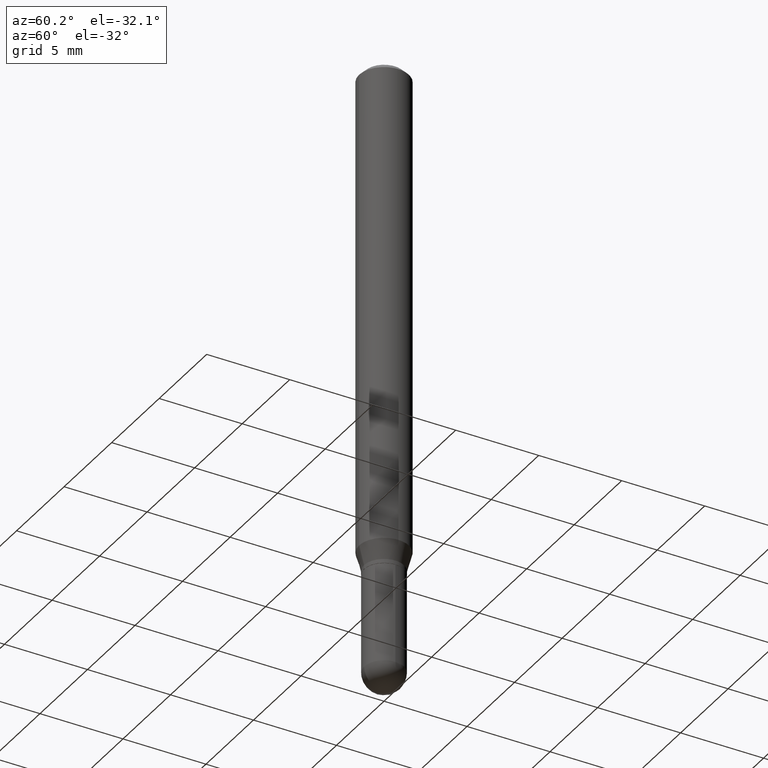
[diagram: clean part render]
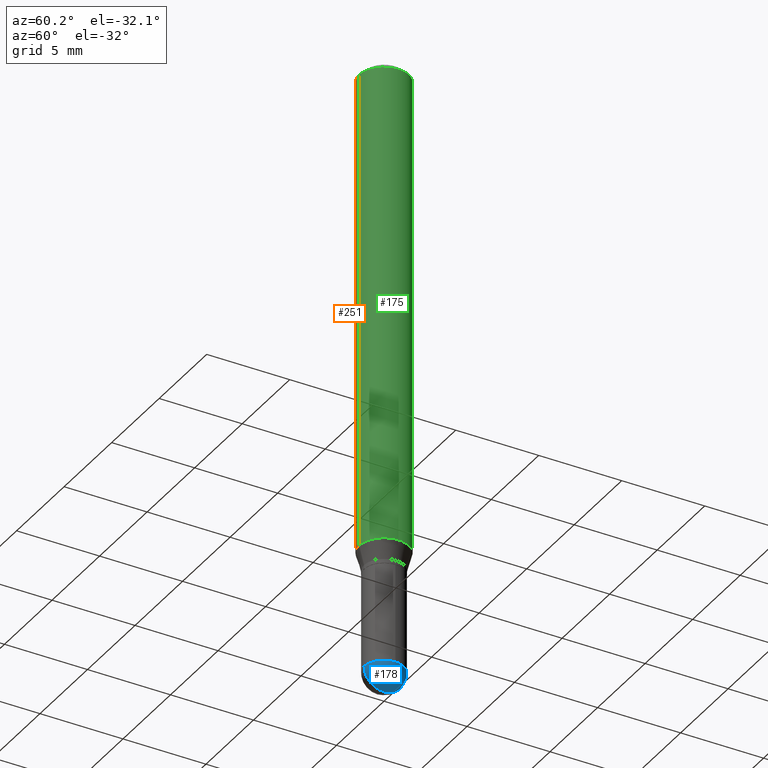
[diagram: same view with three faces highlighted in distinct colors, each labeled with its STEP entity id]
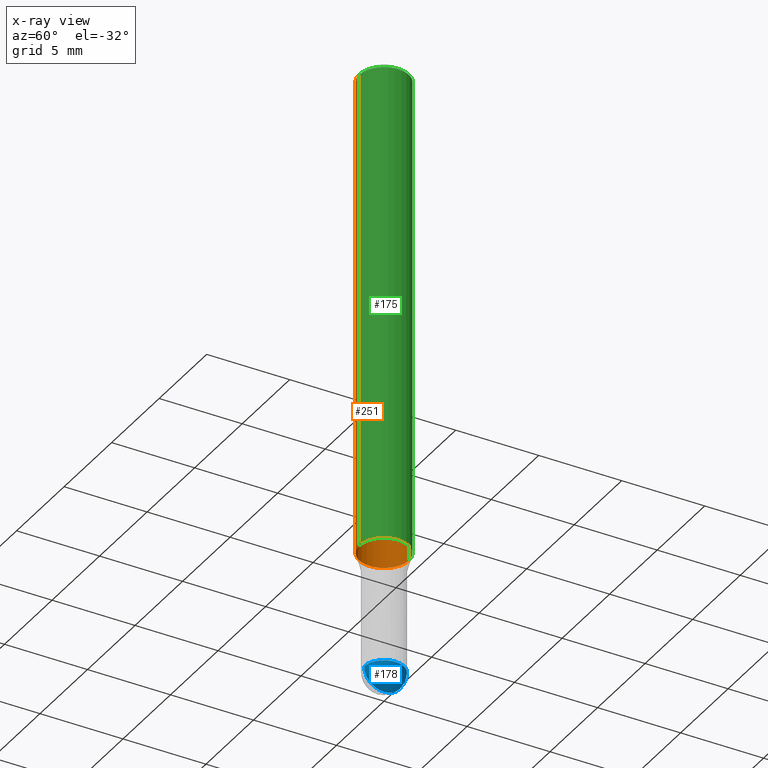
[diagram: x-ray of the same camera — body ghosted, the three highlighted faces saturated]
A machine part, auxiliary view with three faces highlighted in distinct colors.
The next image is the same camera in x-ray (body ghosted, the three faces saturated) — at least one of them is partly hidden behind the body in this view.
Their STEP definitions:

[orange] entity #251 — the highlighted cylindrical surface (edge-blend (fillet) strip) has radius 1.4999 mm, axis along (-0, 0, 1).
#55 = VERTEX_POINT ( 'NONE', #136 ) ;
#63 = CARTESIAN_POINT ( 'NONE',  ( -4.123439461173736383E-16, -0.05905000000000005383, -0.01499999999999988495 ) ) ;
#71 = VECTOR ( 'NONE', #311, 39.37007874015748143 ) ;
#83 = CARTESIAN_POINT ( 'NONE',  ( 4.195754854663673496E-16, 0.05904999999999594601, -1.158561800470687686 ) ) ;
#92 = VERTEX_POINT ( 'NONE', #63 ) ;
#96 = DIRECTION ( 'NONE',  ( -2.445509875133232403E-29, 3.491422525771973150E-15, 1.000000000000000000 ) ) ;
#102 = EDGE_LOOP ( 'NONE', ( #459, #219, #413, #205 ) ) ;
#123 = LINE ( 'NONE', #165, #71 ) ;
#133 = CYLINDRICAL_SURFACE ( 'NONE', #160, 0.05904999999999999832 ) ;
#134 = AXIS2_PLACEMENT_3D ( 'NONE', #446, #96, #213 ) ;
#136 = CARTESIAN_POINT ( 'NONE',  ( -4.123439461173456337E-16, -0.05905000000000405758, -1.158561800470687464 ) ) ;
#154 = LINE ( 'NONE', #507, #482 ) ;
#160 = AXIS2_PLACEMENT_3D ( 'NONE', #285, #249, #403 ) ;
#165 = CARTESIAN_POINT ( 'NONE',  ( 4.195754854663390985E-16, 0.05904999999999999832, -2.061685001468349986E-16 ) ) ;
#167 = CIRCLE ( 'NONE', #134, 0.05904999999999999832 ) ;
#205 = ORIENTED_EDGE ( 'NONE', *, *, #425, .F. ) ;
#213 = DIRECTION ( 'NONE',  ( -6.982962677686265922E-15, -1.000000000000000000, 4.626330217890369336E-15 ) ) ;
#219 = ORIENTED_EDGE ( 'NONE', *, *, #255, .T. ) ;
#249 = DIRECTION ( 'NONE',  ( -2.445509875133232403E-29, 3.491422525771973150E-15, 1.000000000000000000 ) ) ;
#251 = ADVANCED_FACE ( 'NONE', ( #452 ), #133, .T. ) ;
#255 = EDGE_CURVE ( 'NONE', #371, #55, #167, .T. ) ;
#273 = EDGE_CURVE ( 'NONE', #55, #92, #154, .T. ) ;
#281 = CARTESIAN_POINT ( 'NONE',  ( 3.668264812699871200E-31, -5.237133788657991279E-17, -0.01500000000000009139 ) ) ;
#285 = CARTESIAN_POINT ( 'NONE',  ( 0.000000000000000000, 0.000000000000000000, 0.000000000000000000 ) ) ;
#305 = AXIS2_PLACEMENT_3D ( 'NONE', #281, #473, #481 ) ;
#311 = DIRECTION ( 'NONE',  ( -2.445509875133232683E-29, 3.491422525771973150E-15, 1.000000000000000000 ) ) ;
#349 = DIRECTION ( 'NONE',  ( -2.445509875133232683E-29, 3.491422525771973150E-15, 1.000000000000000000 ) ) ;
#371 = VERTEX_POINT ( 'NONE', #83 ) ;
#403 = DIRECTION ( 'NONE',  ( -6.982962677686265922E-15, -1.000000000000000000, 3.491422525771973150E-15 ) ) ;
#410 = EDGE_CURVE ( 'NONE', #371, #511, #123, .T. ) ;
#413 = ORIENTED_EDGE ( 'NONE', *, *, #273, .T. ) ;
#415 = CARTESIAN_POINT ( 'NONE',  ( 4.195754854663675961E-16, 0.05904999999999994281, -0.01500000000000029955 ) ) ;
#425 = EDGE_CURVE ( 'NONE', #511, #92, #432, .T. ) ;
#432 = CIRCLE ( 'NONE', #305, 0.05904999999999999832 ) ;
#446 = CARTESIAN_POINT ( 'NONE',  ( 2.833274324003204060E-29, -4.045028767662292358E-15, -1.158561800470687464 ) ) ;
#452 = FACE_OUTER_BOUND ( 'NONE', #102, .T. ) ;
#459 = ORIENTED_EDGE ( 'NONE', *, *, #410, .F. ) ;
#473 = DIRECTION ( 'NONE',  ( -2.445509875133232403E-29, 3.491422525771973150E-15, 1.000000000000000000 ) ) ;
#481 = DIRECTION ( 'NONE',  ( -6.982962677686265922E-15, -1.000000000000000000, 3.505890868245046092E-15 ) ) ;
#482 = VECTOR ( 'NONE', #349, 39.37007874015748143 ) ;
#507 = CARTESIAN_POINT ( 'NONE',  ( -4.123439461173739834E-16, -0.05904999999999999832, 2.061685001468349986E-16 ) ) ;
#511 = VERTEX_POINT ( 'NONE', #415 ) ;

[blue] entity #178 — the highlighted spherical surface has radius 1.2001 mm.
#1 = EDGE_CURVE ( 'NONE', #50, #485, #9, .T. ) ;
#9 = CIRCLE ( 'NONE', #272, 0.04724999999999993788 ) ;
#18 = DIRECTION ( 'NONE',  ( 1.000000000000000000, -6.982962677686267499E-15, 0.000000000000000000 ) ) ;
#20 = CARTESIAN_POINT ( 'NONE',  ( 3.357314426466824445E-16, 0.04724999999999490025, -1.448850000000000415 ) ) ;
#37 = CIRCLE ( 'NONE', #44, 0.04724999999999998646 ) ;
#44 = AXIS2_PLACEMENT_3D ( 'NONE', #366, #451, #100 ) ;
#50 = VERTEX_POINT ( 'NONE', #441 ) ;
#74 = EDGE_CURVE ( 'NONE', #259, #485, #37, .T. ) ;
#90 = ORIENTED_EDGE ( 'NONE', *, *, #1, .T. ) ;
#94 = CIRCLE ( 'NONE', #418, 0.04724999999999998646 ) ;
#100 = DIRECTION ( 'NONE',  ( 1.000000000000000000, -6.982962677686267499E-15, 0.000000000000000000 ) ) ;
#117 = AXIS2_PLACEMENT_3D ( 'NONE', #221, #146, #307 ) ;
#146 = DIRECTION ( 'NONE',  ( -1.000000000000000000, 6.982962677686265922E-15, -4.883557194083112340E-29 ) ) ;
#164 = ORIENTED_EDGE ( 'NONE', *, *, #306, .F. ) ;
#178 = ADVANCED_FACE ( 'NONE', ( #497 ), #367, .T. ) ;
#201 = CARTESIAN_POINT ( 'NONE',  ( -3.299449865206404101E-16, -0.04725000000000502409, -1.448849999999999749 ) ) ;
#221 = CARTESIAN_POINT ( 'NONE',  ( 3.539076819124962473E-29, -5.064419193908863088E-15, -1.448849999999999971 ) ) ;
#239 = DIRECTION ( 'NONE',  ( 1.000000000000000000, -7.105427357601001070E-15, 4.926315508542082329E-29 ) ) ;
#240 = ORIENTED_EDGE ( 'NONE', *, *, #74, .F. ) ;
#259 = VERTEX_POINT ( 'NONE', #327 ) ;
#266 = CIRCLE ( 'NONE', #117, 0.04724999999999993788 ) ;
#272 = AXIS2_PLACEMENT_3D ( 'NONE', #364, #239, #316 ) ;
#293 = CARTESIAN_POINT ( 'NONE',  ( 3.539076819124962473E-29, -5.064419193908863088E-15, -1.448849999999999971 ) ) ;
#306 = EDGE_CURVE ( 'NONE', #50, #463, #266, .T. ) ;
#307 = DIRECTION ( 'NONE',  ( -6.982962677686266711E-15, -1.000000000000000000, 0.000000000000000000 ) ) ;
#316 = DIRECTION ( 'NONE',  ( 7.105427357601001070E-15, 1.000000000000000000, 0.000000000000000000 ) ) ;
#327 = CARTESIAN_POINT ( 'NONE',  ( 0.04724999999999998646, -4.976146491152720682E-15, -1.448849999999999971 ) ) ;
#363 = CARTESIAN_POINT ( 'NONE',  ( 3.543117479841335070E-29, -5.058632737782891656E-15, -1.448849999999999971 ) ) ;
#364 = CARTESIAN_POINT ( 'NONE',  ( 3.539076819124962473E-29, -5.064419193908863088E-15, -1.448849999999999971 ) ) ;
#366 = CARTESIAN_POINT ( 'NONE',  ( 3.543117479841335070E-29, -5.058632737782891656E-15, -1.448849999999999971 ) ) ;
#367 = SPHERICAL_SURFACE ( 'NONE', #389, 0.04724999999999993788 ) ;
#377 = EDGE_LOOP ( 'NONE', ( #164, #90, #240, #508 ) ) ;
#389 = AXIS2_PLACEMENT_3D ( 'NONE', #293, #493, #399 ) ;
#399 = DIRECTION ( 'NONE',  ( -6.982962677686266711E-15, -1.000000000000000000, 5.781688875479930044E-15 ) ) ;
#418 = AXIS2_PLACEMENT_3D ( 'NONE', #363, #486, #18 ) ;
#441 = CARTESIAN_POINT ( 'NONE',  ( 3.652604889859023774E-29, -5.232284915232187596E-15, -1.496099999999999985 ) ) ;
#451 = DIRECTION ( 'NONE',  ( -2.445468806185136597E-29, 3.491481338843145583E-15, 1.000000000000000000 ) ) ;
#463 = VERTEX_POINT ( 'NONE', #201 ) ;
#485 = VERTEX_POINT ( 'NONE', #20 ) ;
#486 = DIRECTION ( 'NONE',  ( -2.445468806185136597E-29, 3.491481338843145583E-15, 1.000000000000000000 ) ) ;
#493 = DIRECTION ( 'NONE',  ( 1.000000000000000000, -6.982962677686266711E-15, 4.883557194083112901E-29 ) ) ;
#495 = EDGE_CURVE ( 'NONE', #463, #259, #94, .T. ) ;
#497 = FACE_OUTER_BOUND ( 'NONE', #377, .T. ) ;
#508 = ORIENTED_EDGE ( 'NONE', *, *, #495, .F. ) ;

[green] entity #175 — the highlighted cylindrical surface (edge-blend (fillet) strip) has radius 1.4999 mm, axis along (-0, 0, 1).
#14 = DIRECTION ( 'NONE',  ( -6.982962677686265922E-15, -1.000000000000000000, 4.626330217890369336E-15 ) ) ;
#19 = DIRECTION ( 'NONE',  ( -2.445509875133232403E-29, 3.491422525771973150E-15, 1.000000000000000000 ) ) ;
#55 = VERTEX_POINT ( 'NONE', #136 ) ;
#63 = CARTESIAN_POINT ( 'NONE',  ( -4.123439461173736383E-16, -0.05905000000000005383, -0.01499999999999988495 ) ) ;
#68 = EDGE_LOOP ( 'NONE', ( #124, #456, #169, #186 ) ) ;
#71 = VECTOR ( 'NONE', #311, 39.37007874015748143 ) ;
#79 = AXIS2_PLACEMENT_3D ( 'NONE', #245, #401, #260 ) ;
#83 = CARTESIAN_POINT ( 'NONE',  ( 4.195754854663673496E-16, 0.05904999999999594601, -1.158561800470687686 ) ) ;
#92 = VERTEX_POINT ( 'NONE', #63 ) ;
#93 = CYLINDRICAL_SURFACE ( 'NONE', #177, 0.05904999999999999832 ) ;
#123 = LINE ( 'NONE', #165, #71 ) ;
#124 = ORIENTED_EDGE ( 'NONE', *, *, #393, .T. ) ;
#129 = EDGE_CURVE ( 'NONE', #92, #511, #229, .T. ) ;
#136 = CARTESIAN_POINT ( 'NONE',  ( -4.123439461173456337E-16, -0.05905000000000405758, -1.158561800470687464 ) ) ;
#154 = LINE ( 'NONE', #507, #482 ) ;
#157 = CARTESIAN_POINT ( 'NONE',  ( 2.833274324003204060E-29, -4.045028767662292358E-15, -1.158561800470687464 ) ) ;
#165 = CARTESIAN_POINT ( 'NONE',  ( 4.195754854663390985E-16, 0.05904999999999999832, -2.061685001468349986E-16 ) ) ;
#169 = ORIENTED_EDGE ( 'NONE', *, *, #129, .F. ) ;
#175 = ADVANCED_FACE ( 'NONE', ( #183 ), #93, .T. ) ;
#177 = AXIS2_PLACEMENT_3D ( 'NONE', #211, #19, #333 ) ;
#183 = FACE_OUTER_BOUND ( 'NONE', #68, .T. ) ;
#186 = ORIENTED_EDGE ( 'NONE', *, *, #273, .F. ) ;
#211 = CARTESIAN_POINT ( 'NONE',  ( 0.000000000000000000, 0.000000000000000000, 0.000000000000000000 ) ) ;
#229 = CIRCLE ( 'NONE', #79, 0.05904999999999999832 ) ;
#245 = CARTESIAN_POINT ( 'NONE',  ( 3.668264812699871200E-31, -5.237133788657991279E-17, -0.01500000000000009139 ) ) ;
#260 = DIRECTION ( 'NONE',  ( -6.982962677686265922E-15, -1.000000000000000000, 3.505890868245046092E-15 ) ) ;
#273 = EDGE_CURVE ( 'NONE', #55, #92, #154, .T. ) ;
#311 = DIRECTION ( 'NONE',  ( -2.445509875133232683E-29, 3.491422525771973150E-15, 1.000000000000000000 ) ) ;
#333 = DIRECTION ( 'NONE',  ( -6.982962677686265922E-15, -1.000000000000000000, 3.491422525771973150E-15 ) ) ;
#349 = DIRECTION ( 'NONE',  ( -2.445509875133232683E-29, 3.491422525771973150E-15, 1.000000000000000000 ) ) ;
#371 = VERTEX_POINT ( 'NONE', #83 ) ;
#372 = CIRCLE ( 'NONE', #438, 0.05904999999999999832 ) ;
#393 = EDGE_CURVE ( 'NONE', #55, #371, #372, .T. ) ;
#401 = DIRECTION ( 'NONE',  ( -2.445509875133232403E-29, 3.491422525771973150E-15, 1.000000000000000000 ) ) ;
#410 = EDGE_CURVE ( 'NONE', #371, #511, #123, .T. ) ;
#415 = CARTESIAN_POINT ( 'NONE',  ( 4.195754854663675961E-16, 0.05904999999999994281, -0.01500000000000029955 ) ) ;
#438 = AXIS2_PLACEMENT_3D ( 'NONE', #157, #478, #14 ) ;
#456 = ORIENTED_EDGE ( 'NONE', *, *, #410, .T. ) ;
#478 = DIRECTION ( 'NONE',  ( -2.445509875133232403E-29, 3.491422525771973150E-15, 1.000000000000000000 ) ) ;
#482 = VECTOR ( 'NONE', #349, 39.37007874015748143 ) ;
#507 = CARTESIAN_POINT ( 'NONE',  ( -4.123439461173739834E-16, -0.05904999999999999832, 2.061685001468349986E-16 ) ) ;
#511 = VERTEX_POINT ( 'NONE', #415 ) ;